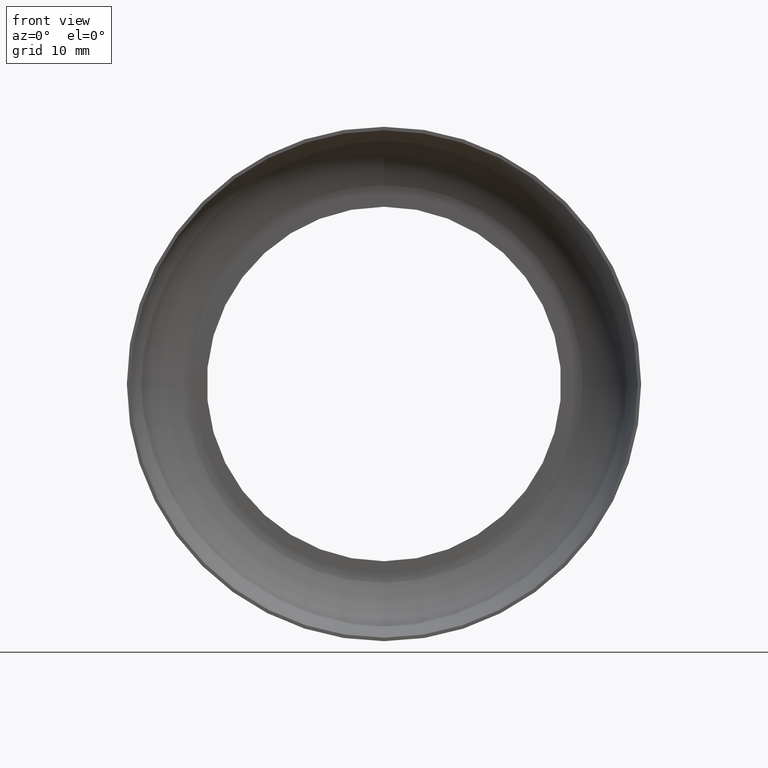
[diagram: clean part render]
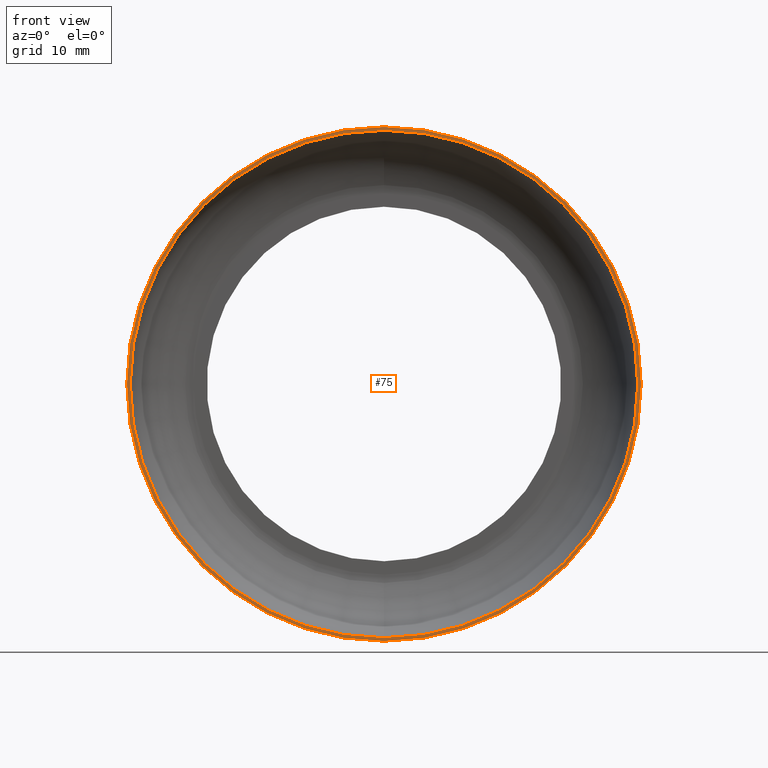
[diagram: same view with one face highlighted and labeled with its STEP entity id]
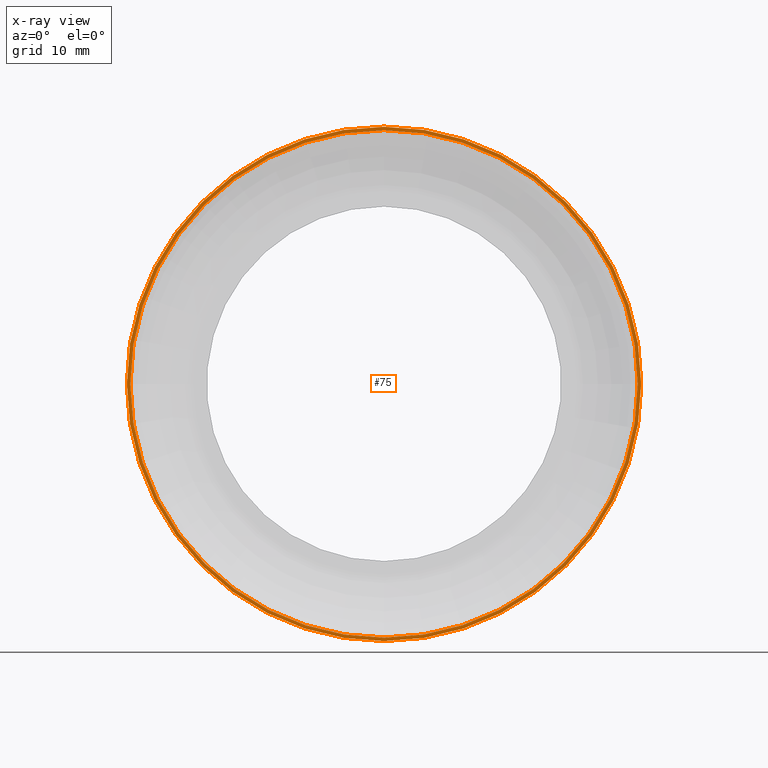
[diagram: x-ray of the same camera — body ghosted, the highlighted face saturated]
A machine part, front view. The second image highlights one B-rep face of the part: STEP entity #75.
The next image is the same camera in x-ray: the body ghosted, the highlighted face saturated — about 0% of this face is hidden behind the body in this view.
In plain terms, the highlighted planar face has unit normal (0, -1, -0).
Its self-contained STEP definition (entity closure, byte-faithful):
#1 = CIRCLE ( 'NONE', #109, 37.00000000000000000 ) ;
#10 = CARTESIAN_POINT ( 'NONE',  ( 0.0000000000000000000, 0.0000000000000000000, 0.0000000000000000000 ) ) ;
#27 = CARTESIAN_POINT ( 'NONE',  ( 0.0000000000000000000, 0.0000000000000000000, 0.0000000000000000000 ) ) ;
#56 = CARTESIAN_POINT ( 'NONE',  ( 0.0000000000000000000, 0.0000000000000000000, -37.00000000000000000 ) ) ;
#57 = VERTEX_POINT ( 'NONE', #56 ) ;
#59 = DIRECTION ( 'NONE',  ( -0.0000000000000000000, -1.000000000000000000, -0.0000000000000000000 ) ) ;
#60 = DIRECTION ( 'NONE',  ( -0.0000000000000000000, -1.000000000000000000, -0.0000000000000000000 ) ) ;
#61 = CARTESIAN_POINT ( 'NONE',  ( 4.531193156845207600E-015, 0.0000000000000000000, 37.00000000000000000 ) ) ;
#63 = VERTEX_POINT ( 'NONE', #61 ) ;
#67 = DIRECTION ( 'NONE',  ( -0.0000000000000000000, -1.000000000000000000, -0.0000000000000000000 ) ) ;
#69 = EDGE_CURVE ( 'NONE', #63, #57, #1, .T. ) ;
#75 = ADVANCED_FACE ( 'NONE', ( #385, #331 ), #374, .T. ) ;
#80 = EDGE_LOOP ( 'NONE', ( #132, #281 ) ) ;
#83 = CIRCLE ( 'NONE', #187, 36.50000000000000000 ) ;
#84 = DIRECTION ( 'NONE',  ( 0.0000000000000000000, -1.000000000000000000, -0.0000000000000000000 ) ) ;
#100 = CARTESIAN_POINT ( 'NONE',  ( 0.0000000000000000000, 0.0000000000000000000, -36.50000000000000000 ) ) ;
#107 = ORIENTED_EDGE ( 'NONE', *, *, #69, .T. ) ;
#109 = AXIS2_PLACEMENT_3D ( 'NONE', #402, #59, #115 ) ;
#115 = DIRECTION ( 'NONE',  ( 0.0000000000000000000, 0.0000000000000000000, -1.000000000000000000 ) ) ;
#122 = EDGE_CURVE ( 'NONE', #225, #365, #83, .T. ) ;
#132 = ORIENTED_EDGE ( 'NONE', *, *, #122, .F. ) ;
#143 = EDGE_CURVE ( 'NONE', #57, #63, #151, .T. ) ;
#151 = CIRCLE ( 'NONE', #351, 37.00000000000000000 ) ;
#154 = DIRECTION ( 'NONE',  ( 0.0000000000000000000, 0.0000000000000000000, -1.000000000000000000 ) ) ;
#160 = EDGE_CURVE ( 'NONE', #365, #225, #327, .T. ) ;
#176 = AXIS2_PLACEMENT_3D ( 'NONE', #346, #376, #186 ) ;
#184 = DIRECTION ( 'NONE',  ( 0.0000000000000000000, 0.0000000000000000000, -1.000000000000000000 ) ) ;
#186 = DIRECTION ( 'NONE',  ( 0.0000000000000000000, 0.0000000000000000000, -1.000000000000000000 ) ) ;
#187 = AXIS2_PLACEMENT_3D ( 'NONE', #373, #60, #184 ) ;
#202 = ORIENTED_EDGE ( 'NONE', *, *, #143, .T. ) ;
#225 = VERTEX_POINT ( 'NONE', #100 ) ;
#271 = EDGE_LOOP ( 'NONE', ( #202, #107 ) ) ;
#281 = ORIENTED_EDGE ( 'NONE', *, *, #160, .F. ) ;
#314 = DIRECTION ( 'NONE',  ( 0.0000000000000000000, 0.0000000000000000000, -1.000000000000000000 ) ) ;
#327 = CIRCLE ( 'NONE', #176, 36.50000000000000000 ) ;
#331 = FACE_OUTER_BOUND ( 'NONE', #271, .T. ) ;
#345 = AXIS2_PLACEMENT_3D ( 'NONE', #27, #84, #154 ) ;
#346 = CARTESIAN_POINT ( 'NONE',  ( 0.0000000000000000000, 0.0000000000000000000, 0.0000000000000000000 ) ) ;
#351 = AXIS2_PLACEMENT_3D ( 'NONE', #10, #67, #314 ) ;
#358 = CARTESIAN_POINT ( 'NONE',  ( 4.469960816887838400E-015, 0.0000000000000000000, 36.50000000000000000 ) ) ;
#365 = VERTEX_POINT ( 'NONE', #358 ) ;
#373 = CARTESIAN_POINT ( 'NONE',  ( 0.0000000000000000000, 0.0000000000000000000, 0.0000000000000000000 ) ) ;
#374 = PLANE ( 'NONE',  #345 ) ;
#376 = DIRECTION ( 'NONE',  ( -0.0000000000000000000, -1.000000000000000000, -0.0000000000000000000 ) ) ;
#385 = FACE_BOUND ( 'NONE', #80, .T. ) ;
#402 = CARTESIAN_POINT ( 'NONE',  ( 0.0000000000000000000, 0.0000000000000000000, 0.0000000000000000000 ) ) ;